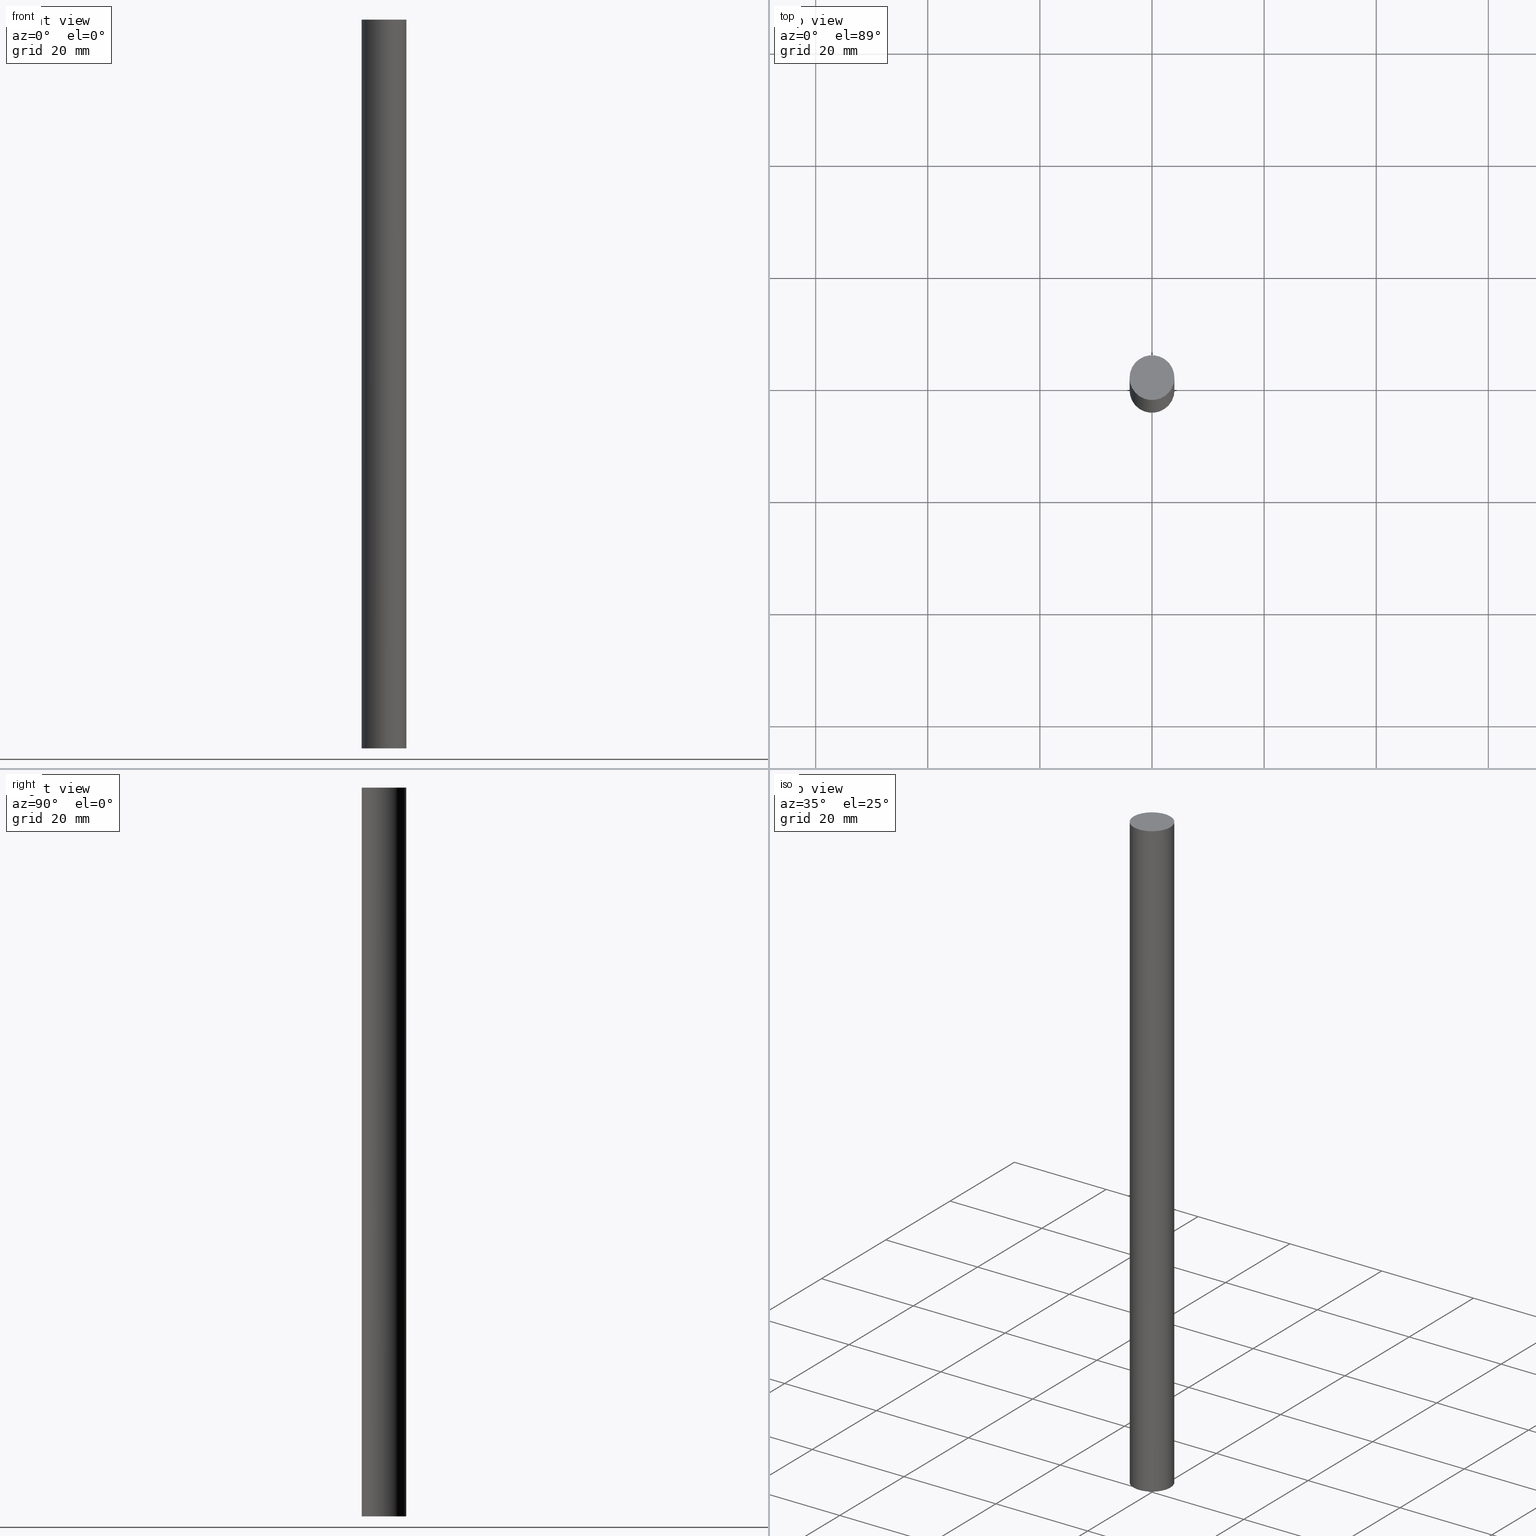
[diagram: canonical four-view strip — front | top / right | iso, engineering-drawing reading convention]
A machine part, canonical four-view strip (front | top / right | iso — engineering-drawing reading convention). The complete STEP part file that produces these views, byte-faithful:
ISO-10303-21;
HEADER;
/* Generated by software containing ST-Developer
 * from STEP Tools, Inc. (www.steptools.com) 
 */

FILE_DESCRIPTION(
/* description */ ('PERNO D8 L=130 IN ACCIAIO ZINC.'),
/* implementation_level */ '2;1');

FILE_NAME(
/* name */ 
'Q:\\Catalogo\\2_Accessori Dierre\\Per Download Web e catalogo cartace
o\\CATALOGO ACCESSORI PER RIPARI\\PAGINA 71\\DPEXX0000041.stp',
/* time_stamp */ '2018-11-07T11:19:19+01:00',
/* author */ ('fzagni'),
/* organization */ (''),
/* preprocessor_version */ 'ST-DEVELOPER v16.1',
/* originating_system */ 'Autodesk Inventor 2016',
/* authorisation */ '');

FILE_SCHEMA (('AUTOMOTIVE_DESIGN { 1 0 10303 214 3 1 1 }'));
ENDSEC;

DATA;
#10=MECHANICAL_DESIGN_GEOMETRIC_PRESENTATION_REPRESENTATION('',(#13),#69);
#11=SHAPE_REPRESENTATION_RELATIONSHIP('SRR','None',#78,#12);
#12=ADVANCED_BREP_SHAPE_REPRESENTATION('',(#14),#68);
#13=STYLED_ITEM('',(#87),#14);
#14=MANIFOLD_SOLID_BREP('None',#39);
#15=PLANE('',#44);
#16=PLANE('',#45);
#17=FACE_BOUND('',#22,.T.);
#18=FACE_OUTER_BOUND('',#21,.T.);
#19=FACE_OUTER_BOUND('',#23,.T.);
#20=FACE_OUTER_BOUND('',#24,.T.);
#21=EDGE_LOOP('',(#31));
#22=EDGE_LOOP('',(#32));
#23=EDGE_LOOP('',(#33));
#24=EDGE_LOOP('',(#34));
#25=CIRCLE('',#42,3.999999999984);
#26=CIRCLE('',#43,3.999999999984);
#27=VERTEX_POINT('',#60);
#28=VERTEX_POINT('',#62);
#29=EDGE_CURVE('',#27,#27,#25,.T.);
#30=EDGE_CURVE('',#28,#28,#26,.T.);
#31=ORIENTED_EDGE('',*,*,#29,.F.);
#32=ORIENTED_EDGE('',*,*,#30,.T.);
#33=ORIENTED_EDGE('',*,*,#30,.F.);
#34=ORIENTED_EDGE('',*,*,#29,.T.);
#35=CYLINDRICAL_SURFACE('',#41,3.999999999984);
#36=ADVANCED_FACE('',(#18,#17),#35,.T.);
#37=ADVANCED_FACE('',(#19),#15,.F.);
#38=ADVANCED_FACE('',(#20),#16,.T.);
#39=CLOSED_SHELL('',(#36,#37,#38));
#40=AXIS2_PLACEMENT_3D('placement',#58,#46,#47);
#41=AXIS2_PLACEMENT_3D('',#59,#48,#49);
#42=AXIS2_PLACEMENT_3D('',#61,#50,#51);
#43=AXIS2_PLACEMENT_3D('',#63,#52,#53);
#44=AXIS2_PLACEMENT_3D('',#64,#54,#55);
#45=AXIS2_PLACEMENT_3D('',#65,#56,#57);
#46=DIRECTION('axis',(0.,0.,1.));
#47=DIRECTION('refdir',(1.,0.,0.));
#48=DIRECTION('center_axis',(0.,0.,1.));
#49=DIRECTION('ref_axis',(1.,0.,0.));
#50=DIRECTION('center_axis',(0.,0.,1.));
#51=DIRECTION('ref_axis',(1.,0.,0.));
#52=DIRECTION('center_axis',(0.,0.,1.));
#53=DIRECTION('ref_axis',(1.,0.,0.));
#54=DIRECTION('center_axis',(0.,0.,1.));
#55=DIRECTION('ref_axis',(1.,0.,0.));
#56=DIRECTION('center_axis',(0.,0.,1.));
#57=DIRECTION('ref_axis',(1.,0.,0.));
#58=CARTESIAN_POINT('',(0.,0.,0.));
#59=CARTESIAN_POINT('Origin',(0.,0.,0.));
#60=CARTESIAN_POINT('',(-3.999999999984,0.,130.));
#61=CARTESIAN_POINT('Origin',(0.,0.,130.));
#62=CARTESIAN_POINT('',(-3.999999999984,0.,0.));
#63=CARTESIAN_POINT('Origin',(0.,0.,0.));
#64=CARTESIAN_POINT('Origin',(-4.80000472477425,-4.80000472479378,0.));
#65=CARTESIAN_POINT('Origin',(-4.80000472477425,-4.80000472479378,130.));
#66=UNCERTAINTY_MEASURE_WITH_UNIT(LENGTH_MEASURE(0.01),#70,
'DISTANCE_ACCURACY_VALUE',
'Maximum model space distance between geometric entities at asserted c
onnectivities');
#67=UNCERTAINTY_MEASURE_WITH_UNIT(LENGTH_MEASURE(1.E-6),#70,
'DISTANCE_ACCURACY_VALUE',
'Maximum model space distance between geometric entities at asserted c
onnectivities');
#68=(
GEOMETRIC_REPRESENTATION_CONTEXT(3)
GLOBAL_UNCERTAINTY_ASSIGNED_CONTEXT((#66))
GLOBAL_UNIT_ASSIGNED_CONTEXT((#70,#73,#71))
REPRESENTATION_CONTEXT('','3D')
);
#69=(
GEOMETRIC_REPRESENTATION_CONTEXT(3)
GLOBAL_UNCERTAINTY_ASSIGNED_CONTEXT((#67))
GLOBAL_UNIT_ASSIGNED_CONTEXT((#70,#73,#71))
REPRESENTATION_CONTEXT('','3D')
);
#70=(
LENGTH_UNIT()
NAMED_UNIT(*)
SI_UNIT(.MILLI.,.METRE.)
);
#71=(
NAMED_UNIT(*)
SI_UNIT($,.STERADIAN.)
SOLID_ANGLE_UNIT()
);
#72=DIMENSIONAL_EXPONENTS(0.,0.,0.,0.,0.,0.,0.);
#73=(
CONVERSION_BASED_UNIT('degree',#75)
NAMED_UNIT(#72)
PLANE_ANGLE_UNIT()
);
#74=(
NAMED_UNIT(*)
PLANE_ANGLE_UNIT()
SI_UNIT($,.RADIAN.)
);
#75=PLANE_ANGLE_MEASURE_WITH_UNIT(PLANE_ANGLE_MEASURE(0.01745329252),#74);
#76=SHAPE_DEFINITION_REPRESENTATION(#77,#78);
#77=PRODUCT_DEFINITION_SHAPE('',$,#80);
#78=SHAPE_REPRESENTATION('',(#40),#68);
#79=PRODUCT_DEFINITION_CONTEXT('part definition',#84,'design');
#80=PRODUCT_DEFINITION('DPEXX0000041 (20.052.02)',
'DPEXX0000041 (20.052.02)',#81,#79);
#81=PRODUCT_DEFINITION_FORMATION('','A',#86);
#82=PRODUCT_RELATED_PRODUCT_CATEGORY('DPEXX0000041 (20.052.02)',
'DPEXX0000041 (20.052.02)',(#86));
#83=APPLICATION_PROTOCOL_DEFINITION('international standard',
'automotive_design',2009,#84);
#84=APPLICATION_CONTEXT(
'Core Data for Automotive Mechanical Design Process');
#85=PRODUCT_CONTEXT('part definition',#84,'mechanical');
#86=PRODUCT('DPEXX0000041 (20.052.02)','DPEXX0000041 (20.052.02)',$,(#85));
#87=PRESENTATION_STYLE_ASSIGNMENT((#88));
#88=SURFACE_STYLE_USAGE(.BOTH.,#89);
#89=SURFACE_SIDE_STYLE('',(#90));
#90=SURFACE_STYLE_FILL_AREA(#91);
#91=FILL_AREA_STYLE('',(#92));
#92=FILL_AREA_STYLE_COLOUR('',#93);
#93=COLOUR_RGB('',0.690196078431373,0.67843137254902,0.67843137254902);
ENDSEC;
END-ISO-10303-21;
